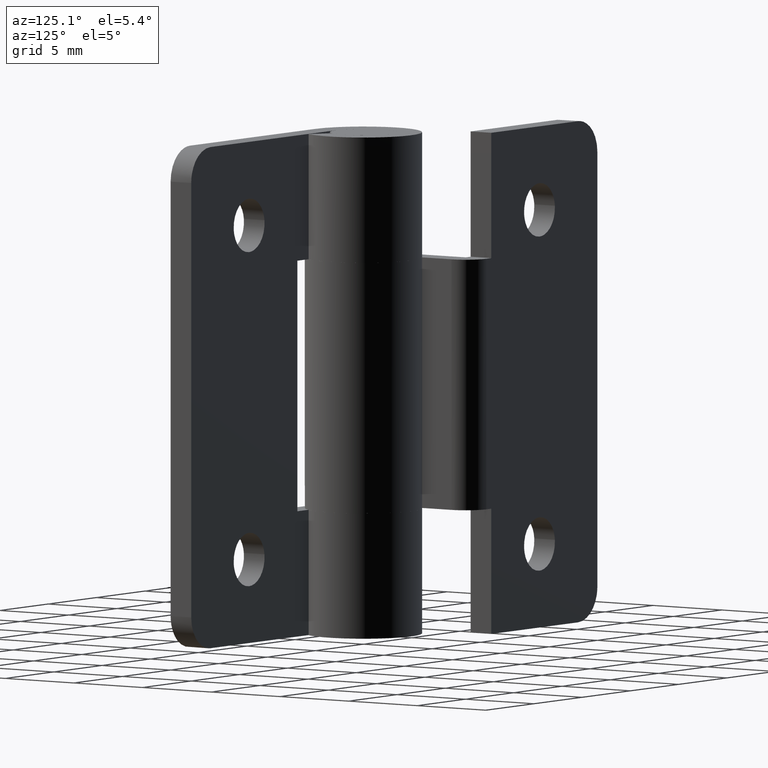
[diagram: clean part render]
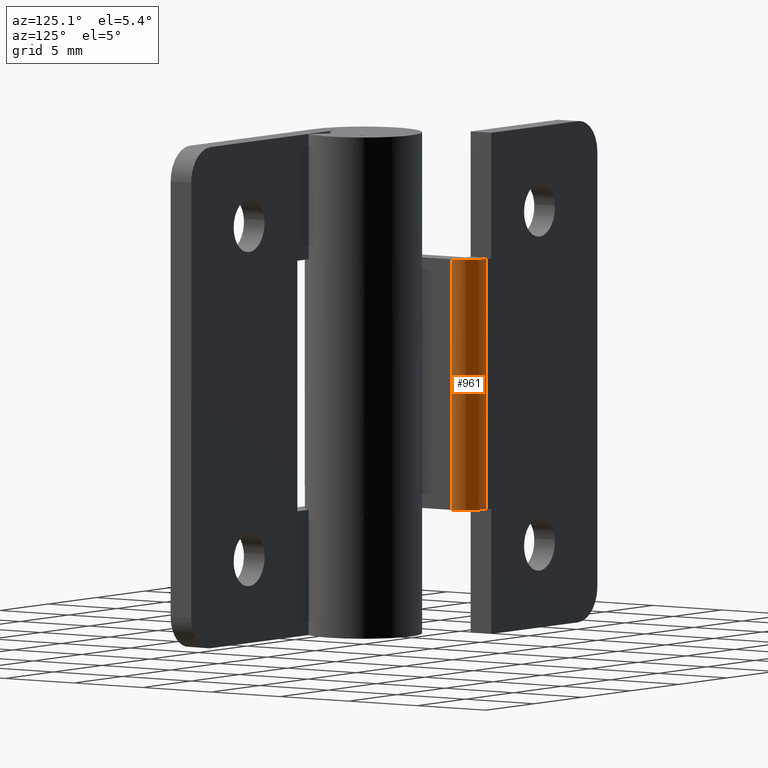
[diagram: same view with one face highlighted and labeled with its STEP entity id]
A machine part, auxiliary view. The second image highlights one B-rep face of the part: STEP entity #961.
In plain terms, the highlighted face is a freeform B-spline surface patch.
Its self-contained STEP definition (entity closure, byte-faithful):
#684=CARTESIAN_POINT('',(-3.500000000000000,6.499998000000000,7.500000000000000));
#685=VERTEX_POINT('',#684);
#691=CARTESIAN_POINT('',(-2.0,4.999998000000001,7.500000000000000));
#692=VERTEX_POINT('',#691);
#693=CARTESIAN_POINT('',(-3.500000000000000,6.499998000000000,7.500000000000000));
#694=CARTESIAN_POINT('',(-2.000000000000000,6.499998000000001,7.500000000000000));
#695=CARTESIAN_POINT('',(-2.0,4.999998000000001,7.500000000000000));
#703=(BOUNDED_CURVE()B_SPLINE_CURVE(2,(#693,#694,#695),.UNSPECIFIED.,.F.,.U.)CURVE()GEOMETRIC_REPRESENTATION_ITEM()QUASI_UNIFORM_CURVE()RATIONAL_B_SPLINE_CURVE((1.0,0.707106781186548,1.0))REPRESENTATION_ITEM(''));
#704=EDGE_CURVE('',#685,#692,#703,.T.);
#868=CARTESIAN_POINT('',(-2.0,4.999998000000001,22.500000000000000));
#869=VERTEX_POINT('',#868);
#875=CARTESIAN_POINT('',(-3.500000000000000,6.499998000000000,22.500000000000000));
#876=VERTEX_POINT('',#875);
#877=CARTESIAN_POINT('',(-2.0,4.999998000000001,22.500000000000000));
#878=CARTESIAN_POINT('',(-2.000000000000000,6.499998000000001,22.500000000000000));
#879=CARTESIAN_POINT('',(-3.500000000000000,6.499998000000000,22.500000000000000));
#887=(BOUNDED_CURVE()B_SPLINE_CURVE(2,(#877,#878,#879),.UNSPECIFIED.,.F.,.U.)CURVE()GEOMETRIC_REPRESENTATION_ITEM()QUASI_UNIFORM_CURVE()RATIONAL_B_SPLINE_CURVE((1.0,0.707106781186548,1.0))REPRESENTATION_ITEM(''));
#888=EDGE_CURVE('',#869,#876,#887,.T.);
#933=CARTESIAN_POINT('',(-2.001427667627214,4.934568918951997,22.875000000000000));
#934=CARTESIAN_POINT('',(-2.001427667627214,4.934568918951997,7.115625000000000));
#935=CARTESIAN_POINT('',(-1.928098263823172,6.614088391486033,22.875000000000011));
#936=CARTESIAN_POINT('',(-1.928098263823172,6.614088391486033,7.115625000000000));
#937=CARTESIAN_POINT('',(-3.605087133460214,6.496312370171292,22.875000000000007));
#938=CARTESIAN_POINT('',(-3.605087133460214,6.496312370171292,7.115624999999999));
#946=(BOUNDED_SURFACE()B_SPLINE_SURFACE(1,2,((#933,#935,#937),(#934,#936,#938)),.UNSPECIFIED.,.F.,.F.,.U.)B_SPLINE_SURFACE_WITH_KNOTS((2,2),(3,3),(0.0,15.759375000000009),(0.0,2.687613804218218),.UNSPECIFIED.)GEOMETRIC_REPRESENTATION_ITEM()RATIONAL_B_SPLINE_SURFACE(((1.0,0.664513899225691,0.996233559893427),(1.0,0.664513899225691,0.996233559893427)))REPRESENTATION_ITEM('')SURFACE());
#947=ORIENTED_EDGE('',*,*,#704,.F.);
#948=CARTESIAN_POINT('',(-3.500000000000000,6.499998000000000,22.500000000000000));
#949=CARTESIAN_POINT('',(-3.500000000000000,6.499998000000000,7.500000000000000));
#950=QUASI_UNIFORM_CURVE('',1,(#948,#949),.UNSPECIFIED.,.F.,.U.);
#951=EDGE_CURVE('',#876,#685,#950,.T.);
#952=ORIENTED_EDGE('',*,*,#951,.F.);
#953=ORIENTED_EDGE('',*,*,#888,.F.);
#954=CARTESIAN_POINT('',(-2.0,4.999998000000001,7.500000000000000));
#955=CARTESIAN_POINT('',(-2.0,4.999998000000001,22.500000000000000));
#956=QUASI_UNIFORM_CURVE('',1,(#954,#955),.UNSPECIFIED.,.F.,.U.);
#957=EDGE_CURVE('',#692,#869,#956,.T.);
#958=ORIENTED_EDGE('',*,*,#957,.F.);
#959=EDGE_LOOP('',(#947,#952,#953,#958));
#960=FACE_OUTER_BOUND('',#959,.T.);
#961=ADVANCED_FACE('',(#960),#946,.T.);